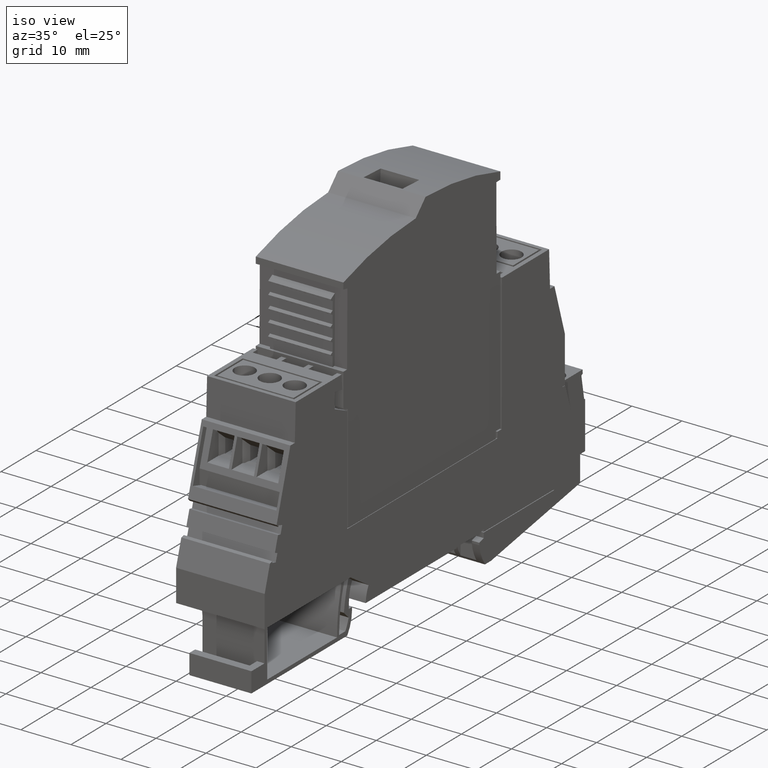
[diagram: clean part render]
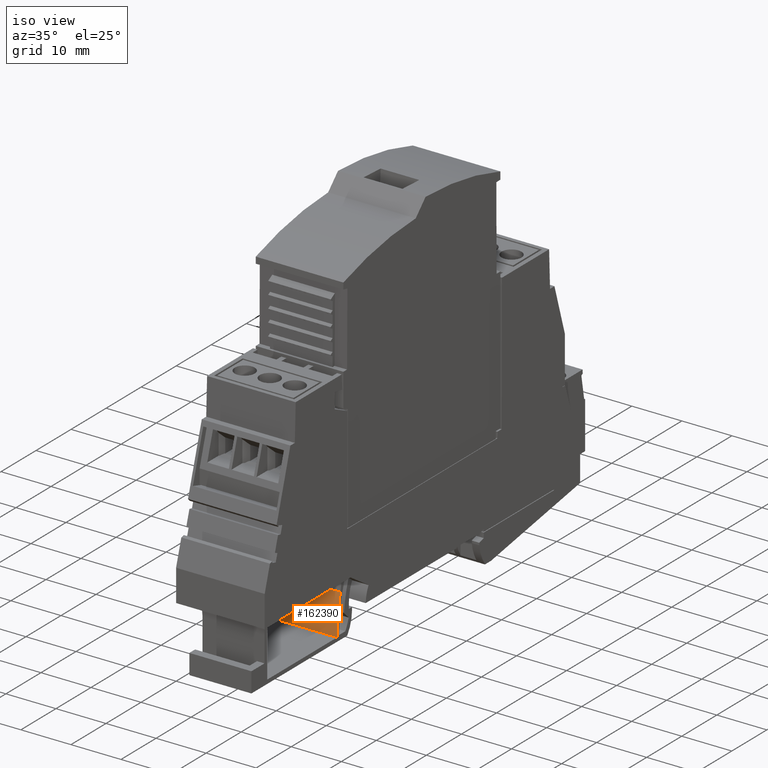
[diagram: same view with one face highlighted and labeled with its STEP entity id]
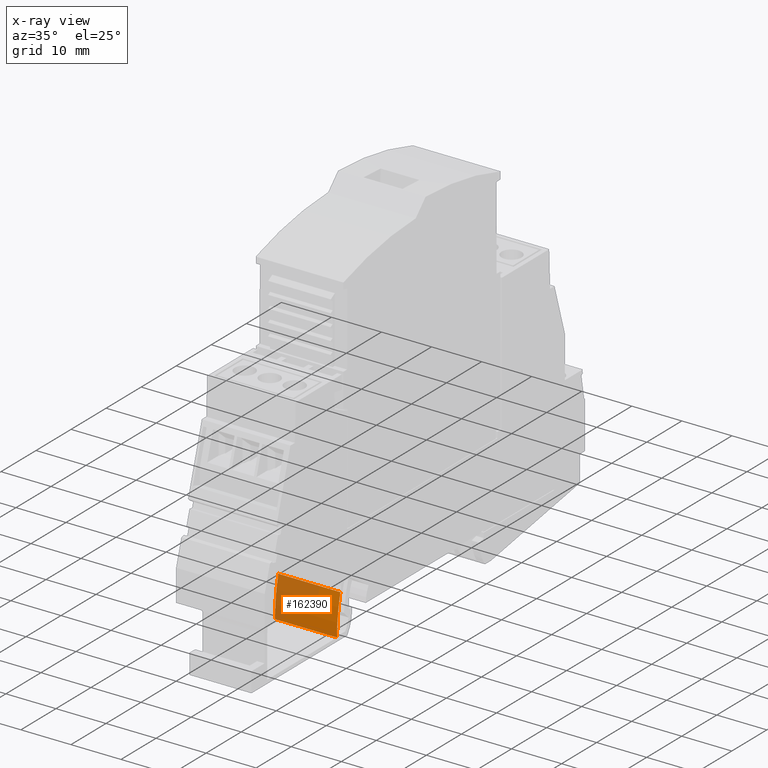
[diagram: x-ray of the same camera — body ghosted, the highlighted face saturated]
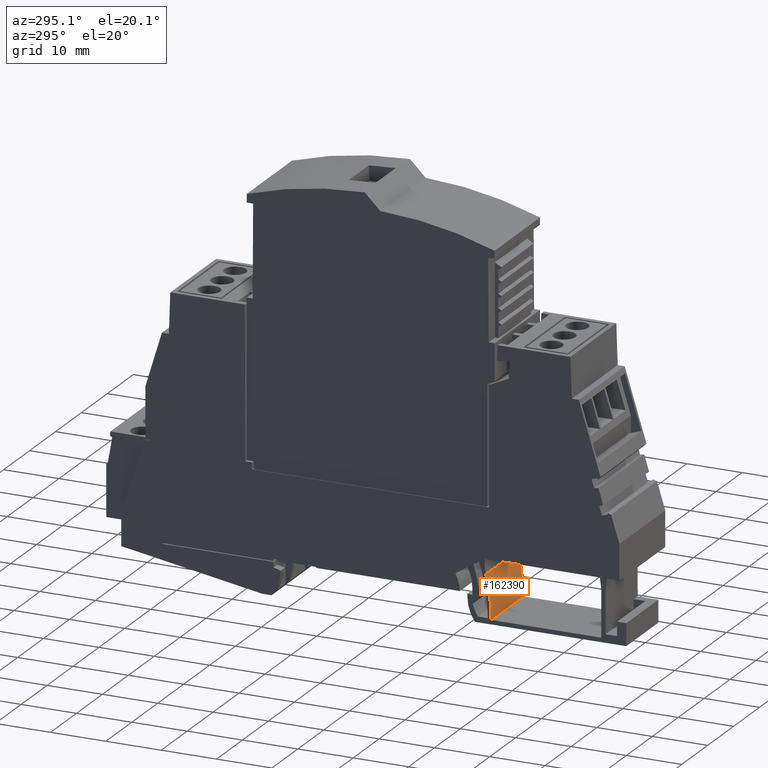
[diagram: same view with one face highlighted and labeled with its STEP entity id]
A machine part, iso view. The second image highlights one B-rep face of the part: STEP entity #162390.
The next image is the same camera in x-ray: the body ghosted, the highlighted face saturated — about 44% of this face is hidden behind the body in this view.
A second angle (auxiliary view) of the same face is appended — the face is thin or edge-on in the first view.
In plain terms, the highlighted cylindrical surface (partial cylindrical patch) has radius 31.8836 mm, axis along (1, -0, -0).
Its self-contained STEP definition (entity closure, byte-faithful):
#11080=CARTESIAN_POINT('',(88.9577043175763,23.7290433854689,
-36.1500000000924));
#11090=VERTEX_POINT('',#11080);
#11120=CARTESIAN_POINT('',(58.0425004946949,15.9308774479214,
-36.1500000000924));
#11130=DIRECTION('',(0.,0.,-1.));
#11140=DIRECTION('',(-0.999999960702971,-0.000280346313663573,0.));
#11150=AXIS2_PLACEMENT_3D('',#11120,#11130,#11140);
#11160=CIRCLE('',#11150,31.8835571948901);
#11170=CARTESIAN_POINT('',(89.9260566836108,15.9228681989067,
-36.1500000000924));
#11180=VERTEX_POINT('',#11170);
#11190=EDGE_CURVE('',#11090,#11180,#11160,.T.);
#64080=CARTESIAN_POINT('',(89.9260566836108,15.9228681989067,
-48.5500000000924));
#64090=VERTEX_POINT('',#64080);
#64120=CARTESIAN_POINT('',(58.0425004946949,15.9308774479214,
-48.5500000000924));
#64130=DIRECTION('',(0.,0.,-1.));
#64140=DIRECTION('',(-0.999999960702971,-0.000280346313663573,0.));
#64150=AXIS2_PLACEMENT_3D('',#64120,#64130,#64140);
#64160=CIRCLE('',#64150,31.8835571948901);
#64170=CARTESIAN_POINT('',(88.9577043175763,23.7290433854689,
-48.5500000000924));
#64180=VERTEX_POINT('',#64170);
#64190=EDGE_CURVE('',#64180,#64090,#64160,.T.);
#66730=CARTESIAN_POINT('',(88.9577043175763,23.7290433854689,
-36.1500000000924));
#66740=DIRECTION('',(0.,0.,-1.));
#66750=VECTOR('',#66740,1.);
#66760=LINE('',#66730,#66750);
#66770=EDGE_CURVE('',#11090,#64180,#66760,.T.);
#70060=CARTESIAN_POINT('',(89.9260566836108,15.9228681989068,
-36.1500000000924));
#70070=DIRECTION('',(0.,0.,-1.));
#70080=VECTOR('',#70070,1.);
#70090=LINE('',#70060,#70080);
#70100=EDGE_CURVE('',#11180,#64090,#70090,.T.);
#162280=CARTESIAN_POINT('',(58.0425004946949,15.9308774479214,
-36.1500000000924));
#162290=DIRECTION('',(0.,0.,-1.));
#162300=DIRECTION('',(-0.999999960702971,-0.000280346313663573,0.));
#162310=AXIS2_PLACEMENT_3D('',#162280,#162290,#162300);
#162320=CYLINDRICAL_SURFACE('',#162310,31.8835571948901);
#162330=ORIENTED_EDGE('',*,*,#11190,.T.);
#162340=ORIENTED_EDGE('',*,*,#66770,.F.);
#162350=ORIENTED_EDGE('',*,*,#64190,.F.);
#162360=ORIENTED_EDGE('',*,*,#70100,.T.);
#162370=EDGE_LOOP('',(#162360,#162350,#162340,#162330));
#162380=FACE_OUTER_BOUND('',#162370,.T.);
#162390=ADVANCED_FACE('',(#162380),#162320,.T.);